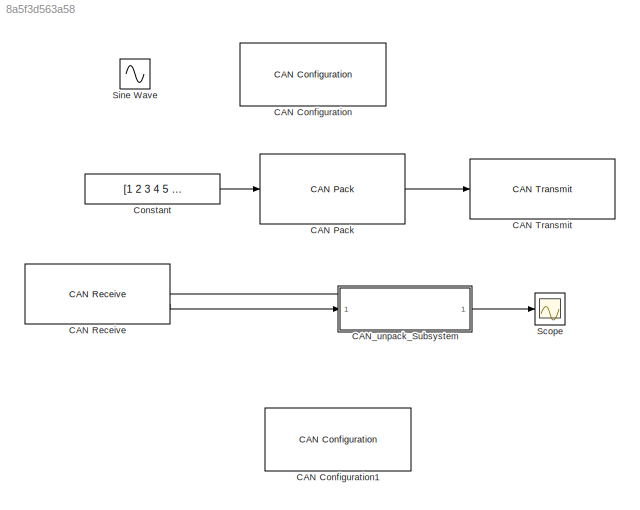
MODEL slx_8a5f3d563a58
KIND model
CONFIG AbsTol = auto
CONFIG EnableMultiTasking = off
CONFIG FixedStep = auto
CONFIG MaxStep = auto
CONFIG MinStep = auto
CONFIG RelTol = 1e-3
CONFIG SampleTimeConstraint = Unconstrained
CONFIG SolverName = VariableStepDiscrete
CONFIG StartTime = 0.0
CONFIG StopTime = 10.0
BLOCK [Reference] CAN Configuration  REF=canlib/CAN Configuration
  SourceBlock = canlib/CAN Configuration
  SourceType = CAN Configuration
BLOCK [Reference] CAN Configuration1  REF=canlib/CAN Configuration
  SourceBlock = canlib/CAN Configuration
  SourceType = CAN Configuration
BLOCK [Reference] CAN Pack  REF=canmsglib/CAN Pack
  LibrarySourceBlock = canlib/CAN Pack
  SourceBlock = canmsglib/CAN Pack
  SourceType = CAN Pack
BLOCK [Reference] CAN Receive  REF=canlib/CAN Receive
  SourceBlock = canlib/CAN Receive
  SourceType = CAN Receive
BLOCK [Reference] CAN Transmit  REF=canlib/CAN Transmit
  SourceBlock = canlib/CAN Transmit
  SourceType = CAN Transmit
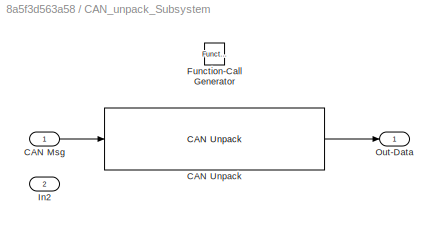
BLOCK [SubSystem] CAN_unpack_Subsystem
  PortSchema = {"entries":[{"content":{"sides":[{"content":{"connectorIds":["In1"]},"type":"ConnectorPlacement.EquallySpacedRectSide","uuid":"d0d957fd-0fc7-4a62-99b4-653b3bd6b7d6"},{"content":{"connectorIds":["Out1"],"side":"RIGHT"},"type":"ConnectorPlacement.EquallySpacedRectSide","uuid":"e111c853-02ba-44c0-8f39-40458bdc4295"},{"content":{"connectorIds":["In2"],"side":"TOP"},"type":"ConnectorPlacement.EquallySp...<+245ch>
BLOCK [Inport] CAN_unpack_Subsystem/CAN Msg
BLOCK [Reference] CAN_unpack_Subsystem/CAN Unpack  REF=canmsglib/CAN Unpack
  LibrarySourceBlock = c2000lib/Target Communication/CAN Unpack
  SourceBlock = canmsglib/CAN Unpack
  SourceType = CAN Unpack
BLOCK [Reference] CAN_unpack_Subsystem/Function-Call Generator  REF=simulink/Ports &
Subsystems/Function-Call
Generator
  SourceBlock = simulink/Ports &\nSubsystems/Function-Call\nGenerator
  SourceType = Function-Call Generator
BLOCK [Inport] CAN_unpack_Subsystem/In2
  Port = 2
BLOCK [Outport] CAN_unpack_Subsystem/Out-Data
BLOCK [Constant] Constant
  OutDataTypeStr = uint8
  SampleTime = 0.01
  Value = [1 2 3 4 5 6 7 8]
BLOCK [Scope] Scope
  Floating = off
  NumInputPorts = 1
  ScopeSpecificationString = Simulink.scopes.TimeScopeBlockCfg('CurrentConfiguration', extmgr.ConfigurationSet(extmgr.Configuration('Core','General UI',true),extmgr.Configuration('Core','Source UI',true),extmgr.Configuration('Sources','WiredSimulink',true,'DataLoggingVariableName','ScopeData1'),extmgr.Configuration('Visuals','Time Domain',true,'SerializedDisplays',{struct('MinYLimReal','-1.00000','MaxYLimReal','9.00000','YLab...<+1678ch>
BLOCK [Sin] Sine Wave
  SampleTime = 0
LINE CAN Pack:1 -> CAN Transmit:1
LINE CAN Receive:1 -> CAN_unpack_Subsystem:2
LINE CAN Receive:2 -> CAN_unpack_Subsystem:1
LINE CAN_unpack_Subsystem/CAN Msg:1 -> CAN_unpack_Subsystem/CAN Unpack:1
LINE CAN_unpack_Subsystem/CAN Unpack:1 -> CAN_unpack_Subsystem/Out-Data:1
LINE CAN_unpack_Subsystem:1 -> Scope:1
LINE Constant:1 -> CAN Pack:1
